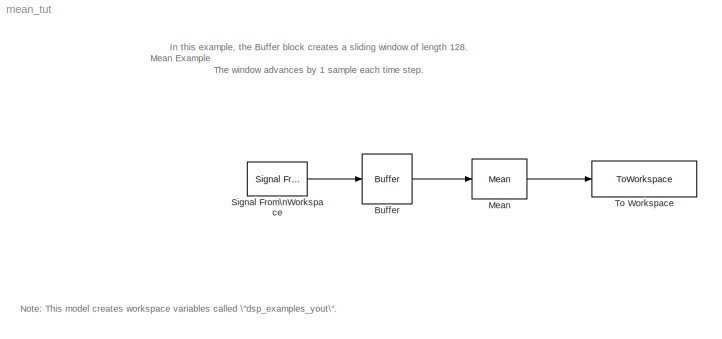
MODEL mean_tut
KIND model
CONFIG AbsTol = auto
CONFIG FixedStep = auto
CONFIG MaxStep = auto
CONFIG MinStep = auto
CONFIG RelTol = 1e-3
CONFIG Solver = FixedStepDiscrete
CONFIG SolverMode = Auto
CONFIG StartTime = 0.0
CONFIG StopTime = 10.0
BLOCK [Reference] Buffer  REF=dspbuff3/Buffer
  N = 128
  Ports = [1, 1]
  SourceBlock = dspbuff3/Buffer
  SourceType = Buffer
  V = 127
  ic = 0
BLOCK [Reference] Mean  REF=dspstat3/Mean
  Ports = [1, 1]
  SourceBlock = dspstat3/Mean
  SourceType = Mean
  reset_popup = None
  run = off
BLOCK [Reference] Signal From\nWorkspace  REF=dspsrcs4/Signal From\nWorkspace
  OutputAfterFinalValue = Setting to zero
  Ports = [0, 1]
  SourceBlock = dspsrcs4/Signal From\nWorkspace
  SourceType = Signal From Workspace
  Ts = 0.1
  X = 1:256
  nsamps = 1
BLOCK [ToWorkspace] To Workspace
  MaxDataPoints = inf
  SampleTime = -1
  SaveFormat = Array
  VariableName = dsp_examples_yout
ANNOTATION (root): In this example, the Buffer block creates a sliding window of length 128.\nThe window advances by 1 sample each time step.
ANNOTATION (root): Mean Example
ANNOTATION (root): Note: This model creates workspace variables called \"dsp_examples_yout\".
LINE Buffer:1 -> Mean:1
LINE Mean:1 -> To Workspace:1
LINE Signal From\nWorkspace:1 -> Buffer:1
